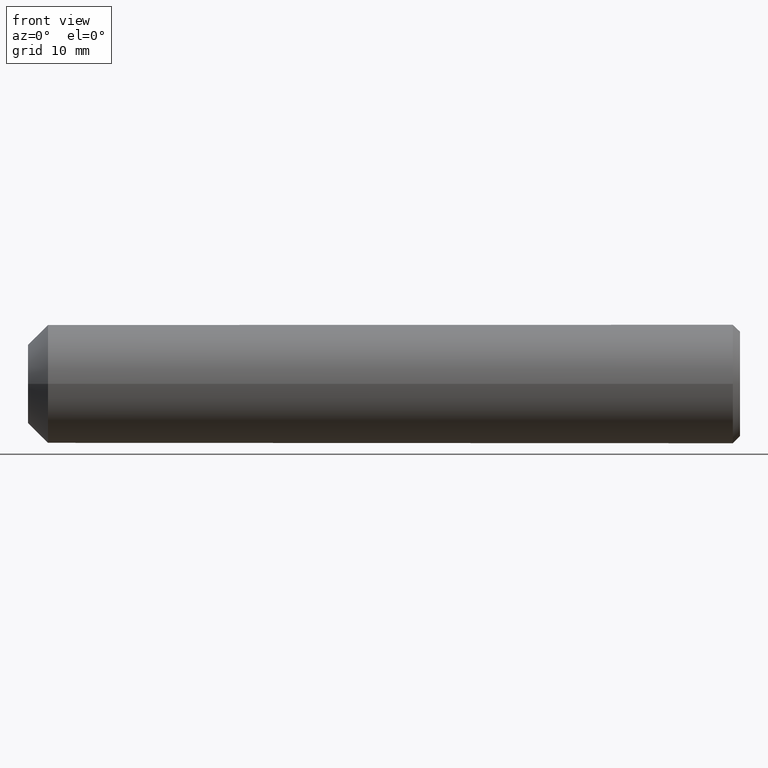
[diagram: clean part render]
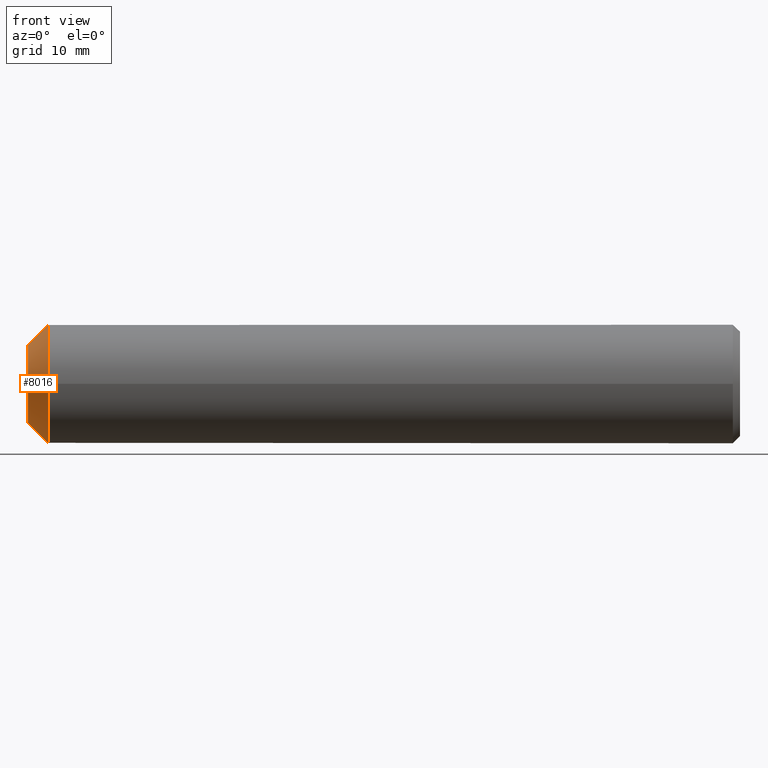
[diagram: same view with one face highlighted and labeled with its STEP entity id]
A machine part, front view. The second image highlights one B-rep face of the part: STEP entity #8016.
In plain terms, the highlighted conical surface has half-angle 45 deg.
Its self-contained STEP definition (entity closure, byte-faithful):
#1201 = CARTESIAN_POINT ( 'NONE',  ( 1.679999999999987500, -4.999999999999999100, 0.0000000000000000000 ) ) ;
#1543 = FACE_BOUND ( 'NONE', #16382, .T. ) ;
#1827 = VERTEX_POINT ( 'NONE', #2412 ) ;
#2291 = CARTESIAN_POINT ( 'NONE',  ( -1.901200912721609600E-016, 5.136624182069382800E-033, 0.0000000000000000000 ) ) ;
#2405 = CARTESIAN_POINT ( 'NONE',  ( -1.901200912721609600E-016, 5.136624182069382800E-033, 0.0000000000000000000 ) ) ;
#2412 = CARTESIAN_POINT ( 'NONE',  ( -2.798191450142389700E-016, -3.319999999999999800, 0.0000000000000000000 ) ) ;
#3196 = AXIS2_PLACEMENT_3D ( 'NONE', #14025, #15459, #9871 ) ;
#4526 = EDGE_CURVE ( 'NONE', #1827, #1827, #15287, .T. ) ;
#6604 = DIRECTION ( 'NONE',  ( 2.701778727171025800E-017, 1.000000000000000000, 0.0000000000000000000 ) ) ;
#7026 = EDGE_LOOP ( 'NONE', ( #12929 ) ) ;
#8016 = ADVANCED_FACE ( 'NONE', ( #17471, #1543 ), #12270, .T. ) ;
#9342 = DIRECTION ( 'NONE',  ( -1.000000000000000000, 2.701778727171025800E-017, -0.0000000000000000000 ) ) ;
#9397 = ORIENTED_EDGE ( 'NONE', *, *, #4526, .F. ) ;
#9706 = AXIS2_PLACEMENT_3D ( 'NONE', #2291, #9342, #14826 ) ;
#9871 = DIRECTION ( 'NONE',  ( -4.336808689942018400E-017, -1.000000000000000000, 0.0000000000000000000 ) ) ;
#11871 = EDGE_CURVE ( 'NONE', #14037, #14037, #15595, .T. ) ;
#12270 = CONICAL_SURFACE ( 'NONE', #17430, 3.319999999999999800, 0.7853981633974517200 ) ;
#12929 = ORIENTED_EDGE ( 'NONE', *, *, #11871, .T. ) ;
#14025 = CARTESIAN_POINT ( 'NONE',  ( 1.679999999999987700, -4.538988261647290200E-017, 0.0000000000000000000 ) ) ;
#14037 = VERTEX_POINT ( 'NONE', #1201 ) ;
#14826 = DIRECTION ( 'NONE',  ( -2.701778727171025500E-017, -1.000000000000000000, 0.0000000000000000000 ) ) ;
#14892 = DIRECTION ( 'NONE',  ( 1.000000000000000000, -2.701778727171025800E-017, 0.0000000000000000000 ) ) ;
#15287 = CIRCLE ( 'NONE', #9706, 3.319999999999999800 ) ;
#15459 = DIRECTION ( 'NONE',  ( -1.000000000000000000, 2.701778727171025800E-017, -0.0000000000000000000 ) ) ;
#15595 = CIRCLE ( 'NONE', #3196, 4.999999999999999100 ) ;
#16382 = EDGE_LOOP ( 'NONE', ( #9397 ) ) ;
#17430 = AXIS2_PLACEMENT_3D ( 'NONE', #2405, #14892, #6604 ) ;
#17471 = FACE_OUTER_BOUND ( 'NONE', #7026, .T. ) ;